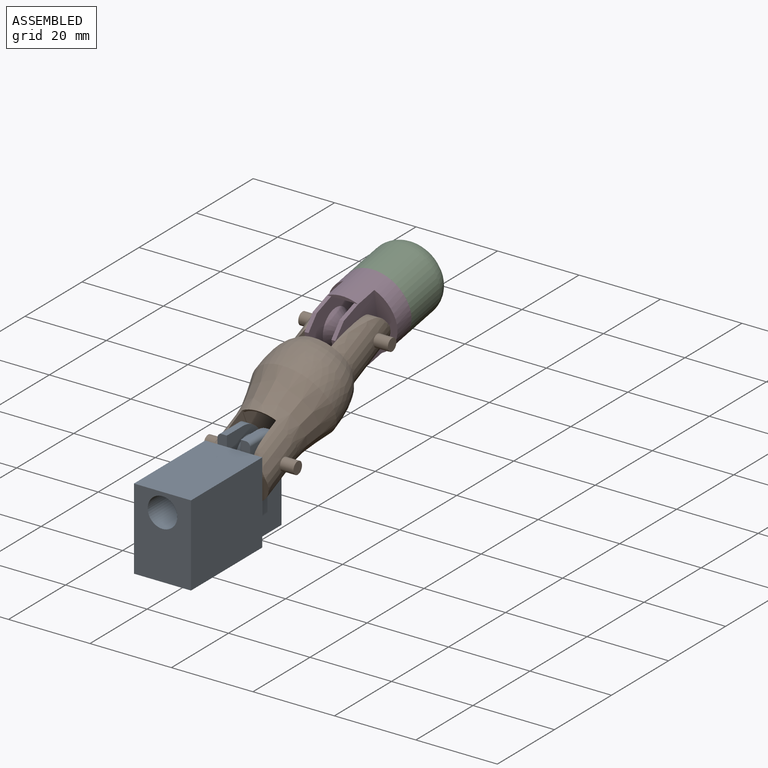
[diagram: assembled view]
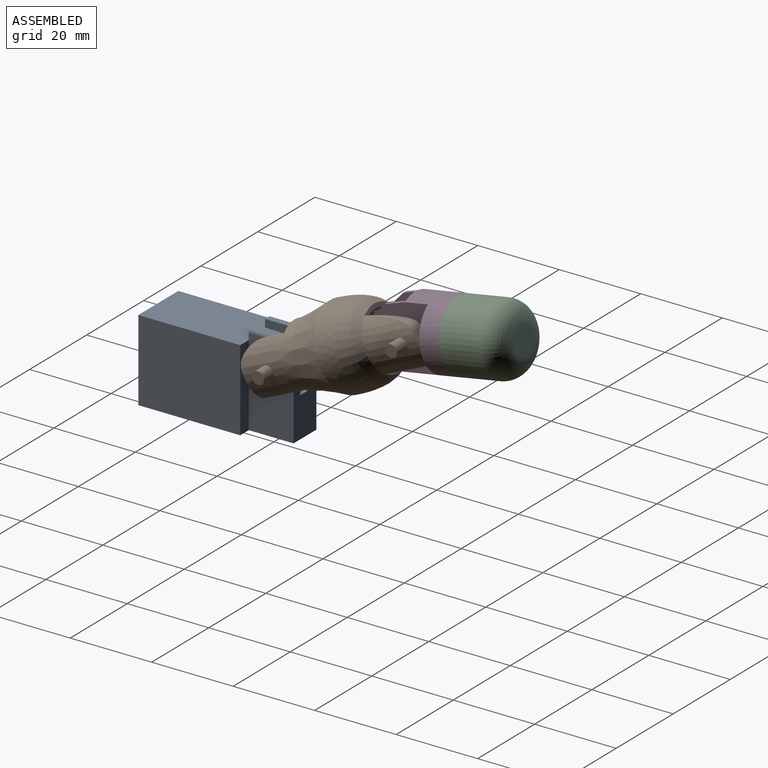
[diagram: assembled view, second angle]
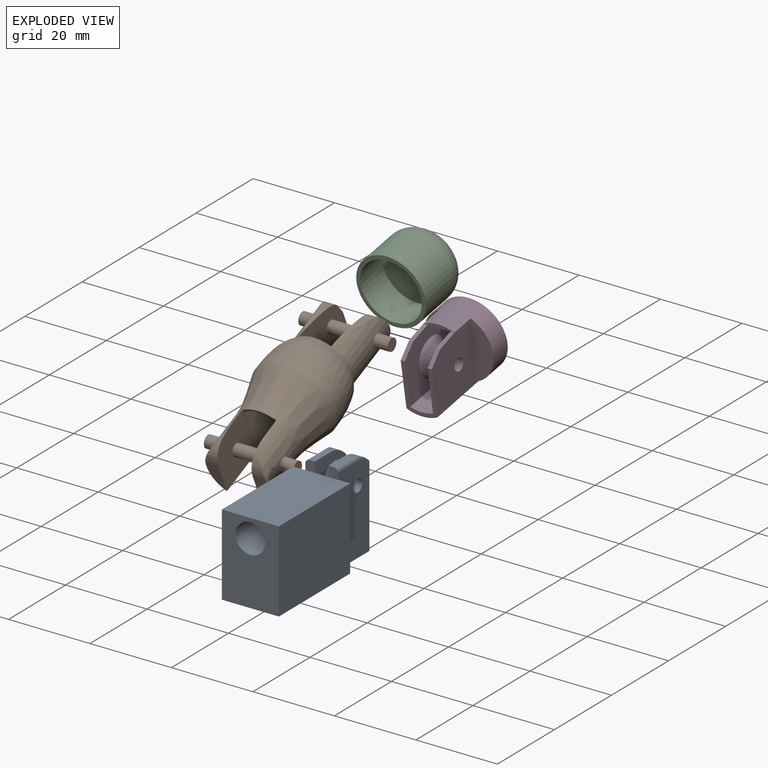
[diagram: exploded view]
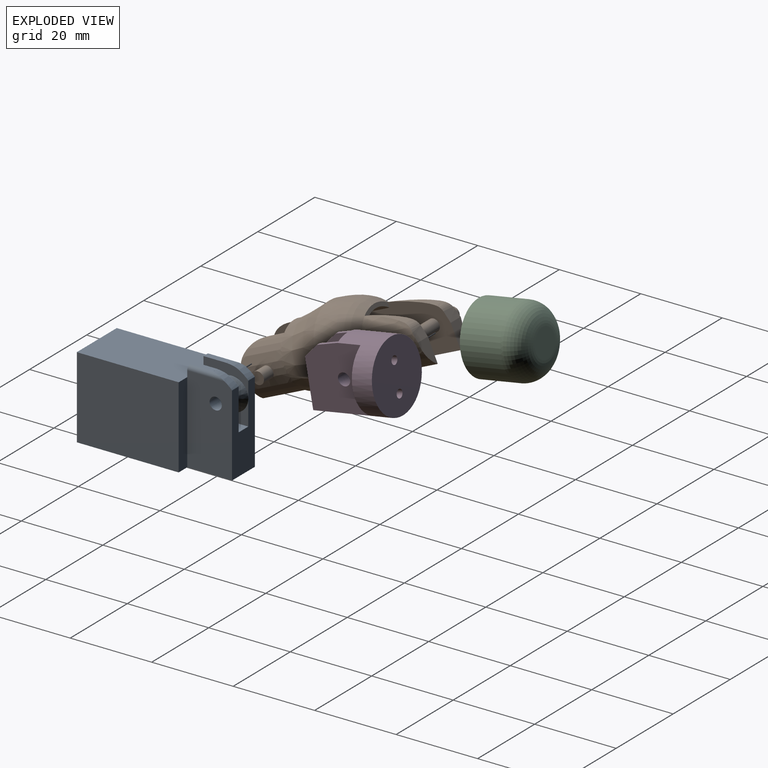
[diagram: exploded view, second angle]
ASSEMBLY  parts=4 mates=3
PART A: 32 faces, bbox 14x36.1x22.5 mm
  f0: plane 3.4x1.36mm, normal (0,1,0), area 3.7mm2, adj f1,f3,f14,f30
  f1: plane 12.7x11.06mm, normal (1,0,0), area 78.1mm2, adj f0,f5,f7,f8,f10,f13,f21,f25
  f2: plane 21.6x11.06mm, normal (-1,0,0), area 228.1mm2, adj f5,f9,f10,f18,f19,f26,f28
  f3: plane 12.7x11.06mm, normal (-1,0,0), area 78.1mm2, adj f0,f6,f7,f10,f11,f13,f22,f23
  f4: plane 21.6x11.06mm, normal (1,0,0), area 228.1mm2, adj f6,f9,f10,f12,f19,f23,f27
  f5: plane 2.5x2.3mm, normal (0,-1,0), area 5.5mm2, adj f1,f2,f8,f14,f28
  f6: plane 2.5x2.3mm, normal (0,-1,0), area 5.5mm2, adj f3,f4,f11,f14,f27
  f7: plane 11x3.4mm, normal (0,0,1), area 37.4mm2, adj f1,f3,f10,f13
  f8: plane 5.74x1.3mm, normal (0,0,1), area 7.5mm2, adj f1,f5,f25,f28
  f9: plane 36x14mm, normal (0,0,-1), area 438mm2, adj f2,f4,f10,f12,f15,f16,f17,f18
  f10: plane 19.97x8mm, normal (0,1,0), area 125.2mm2, adj f1,f2,f3,f4,f7,f9,f23,f26
  f11: plane 5.74x1.3mm, normal (0,0,1), area 7.5mm2, adj f3,f6,f24,f27
  f12: plane 20x3mm, normal (0,1,0), area 60mm2, adj f4,f9,f14,f16
  f13: plane 3.4x2.42mm, normal (0,1,0), area 7.3mm2, adj f1,f3,f7,f30
  f14: plane 25x14mm, normal (0,0,1), area 350mm2, adj f0,f5,f6,f12,f15,f16,f17,f18
  f15: plane 25x20mm, normal (-1,0,0), area 500mm2, adj f9,f14,f17,f18
  f16: plane 25x20mm, normal (1,0,0), area 500mm2, adj f9,f12,f14,f17
  f17: plane 20x14mm, normal (0,-1,0), area 238.6mm2, adj f9,f14,f15,f16,f30
  f18: plane 20x3mm, normal (0,1,0), area 60mm2, adj f2,f9,f14,f15
  f19: cylinder r=1.5mm len=8mm, axis (1,0,0), area 75.4mm2, adj f2,f4
  f20: cylinder r=2.5mm len=5mm, axis (1,0,0), area 6.3mm2, adj f21,f22
  f21: cone r=2.5mm half-angle=45deg, axis (-1,0,0), area 43.3mm2, adj f1,f20
  f22: cone r=2.5mm half-angle=45deg, axis (1,0,0), area 43.3mm2, adj f3,f20
  f23: extruded ~5.26x2.53mm, area 12.6mm2, adj f3,f4,f10,f24,f27
  f24: plane 1.37x0mm, normal (0,1,0), area 0mm2, adj f3,f11,f23,f27
  f25: plane 1.37x0mm, normal (0,1,0), area 0mm2, adj f1,f8,f26,f28
  f26: extruded ~5.26x2.53mm, area 12.6mm2, adj f1,f2,f10,f25,f28
  f27: cylinder r=1mm len=9.13mm, axis (0,1,0), area 11.7mm2, adj f4,f6,f11,f23,f24
  f28: cylinder r=1mm len=9.13mm, axis (0,1,0), area 11.7mm2, adj f2,f5,f8,f25,f26
  f29: plane 6.42x1.93mm, normal (0,-1,0), area 8.8mm2, adj f1,f30
  f30: cylinder r=3.63mm len=26.1mm, axis (0,-1,0), area 587.7mm2, adj f0,f1,f3,f13,f17,f29,f31
  f31: plane 6.42x1.93mm, normal (0,-1,0), area 8.8mm2, adj f3,f30
PART B: 34 faces, bbox 22.4x47x20.2 mm
  f0: plane 8.03x2.38mm, normal (0,1,0), area 8.5mm2, adj f10,f11,f14,f21
  f1: plane 13.85x8.4mm, normal (0,-1,0), area 13.6mm2, adj f3,f4,f9,f11,f14,f22
  f2: extruded ~12.43x11.3mm, area 155.3mm2, adj f3,f9,f17,f20,f30
  f3: plane 12.52x11.39mm, normal (1,0,0), area 126.3mm2, adj f1,f2,f17,f20,f28
  f4: plane 12.52x11.33mm, normal (-1,0,0), area 126.3mm2, adj f1,f5,f18,f19,f28
  f5: extruded ~12.42x11.3mm, area 148.1mm2, adj f4,f9,f18,f19,f31
  f6: plane 5.96x3.52mm, normal (0,1,0), area 14.2mm2, adj f11,f12,f16
  f7: plane 5.96x3.52mm, normal (0,1,0), area 14.2mm2, adj f13,f14,f15
  f8: plane 8.03x2.38mm, normal (0,1,0), area 8.5mm2, adj f10,f11,f14,f22
  f9: bspline ~20x20mm, area 593.9mm2, adj f1,f2,f5,f10,f33
  f10: bspline ~20x20mm, area 659.8mm2, adj f0,f8,f9,f12,f13
  f11: plane 35.73x12.92mm, normal (-1,0,0), area 370.9mm2, adj f0,f1,f6,f8,f12,f16,f21,f22
  f12: extruded ~14x12.69mm, area 175.8mm2, adj f6,f10,f11,f16,f25
  f13: extruded ~14x12.69mm, area 182.9mm2, adj f7,f10,f14,f15,f26
  f14: plane 35.74x12.93mm, normal (1,0,0), area 370.9mm2, adj f0,f1,f7,f8,f13,f15,f21,f22
  f15: extruded ~14x6.76mm, area 27.6mm2, adj f7,f13,f14
  f16: extruded ~13.99x6.76mm, area 27.6mm2, adj f6,f11,f12
  f17: plane 7.56x3.32mm, normal (0,-1,0), area 18.7mm2, adj f2,f3,f20
  f18: plane 7.56x3.32mm, normal (0,-1,0), area 18.7mm2, adj f4,f5,f19
  f19: extruded ~11.24x4.9mm, area 19.8mm2, adj f4,f5,f18
  f20: extruded ~11.3x4.9mm, area 19.9mm2, adj f2,f3,f17
  f21: extruded ~20.5x8mm, area 176.6mm2, adj f0,f11,f14,f33
  f22: extruded ~21.5x8mm, area 185.2mm2, adj f1,f8,f11,f14
  f23: cylinder r=1.5mm len=8mm, axis (-1,0,0), area 75.4mm2, adj f11,f14
  f24: plane 3x3mm, normal (1,0,0), area 7.1mm2, adj f25
  f25: cylinder r=1.5mm len=3.7mm, axis (-1,0,0), area 34.5mm2, adj f12,f24
  f26: cylinder r=1.5mm len=3.7mm, axis (-1,0,0), area 34.5mm2, adj f13,f27
  f27: plane 3x3mm, normal (-1,0,0), area 7.1mm2, adj f26
  f28: cylinder r=1.5mm len=8.4mm, axis (-1,0,0), area 79.2mm2, adj f3,f4
  f29: plane 3x3mm, normal (-1,0,0), area 7.1mm2, adj f30
  f30: cylinder r=1.5mm len=3.94mm, axis (-1,0,0), area 36.4mm2, adj f2,f29
  f31: cylinder r=1.5mm len=3.54mm, axis (-1,0,0), area 32.6mm2, adj f5,f32
  f32: plane 3x3mm, normal (1,0,0), area 7.1mm2, adj f31
  f33: bspline ~9.49x2.49mm, area 13.2mm2, adj f9,f11,f14,f21
PART C: 6 faces, bbox 17x15x17 mm
  f0: cylinder r=8.5mm len=17mm, axis (0,-1,0), area 534.1mm2, adj f2,f3
  f1: plane 7x7mm, normal (0,1,0), area 38.5mm2, adj f3
  f2: plane 17x17mm, normal (0,-1,0), area 50.3mm2, adj f0,f4
  f3: torus R=3.5mm, axis (0,1,0), area 329.8mm2, adj f0,f1
  f4: cylinder r=7.5mm len=15mm, axis (0,-1,0), area 377mm2, adj f2,f5
  f5: plane 15x15mm, normal (0,-1,0), area 176.7mm2, adj f4
PART D: 23 faces, bbox 17x19.5x17 mm
  f0: plane 16x14.56mm, normal (-1,0,0), area 156.4mm2, adj f2,f3,f4,f15,f16,f17,f20
  f1: plane 16x14.56mm, normal (1,0,0), area 156.4mm2, adj f2,f11,f12,f15,f16,f17,f19
  f2: plane 12.49x7.6mm, normal (0,-1,0), area 29.3mm2, adj f0,f1,f4,f5,f6,f10,f12,f16
  f3: plane 5.24x1mm, normal (0,-0.16,0.99), area 5.3mm2, adj f0,f4,f10,f13
  f4: plane 3.5x2.76mm, normal (0,-0.62,0.79), area 4.5mm2, adj f0,f2,f3,f10
  f5: cylinder r=8.5mm len=19.5mm, axis (0,-1,0), area 426.6mm2, adj f2,f6,f7,f8,f9,f10,f13
  f6: plane 15.21x14.5mm, normal (-1,0,0), area 203.3mm2, adj f2,f5,f7,f11,f12,f14
  f7: plane 15.21x4.7mm, normal (0,-1,0), area 51.1mm2, adj f5,f6
  f8: plane 17x17mm, normal (0,1,0), area 220.7mm2, adj f5,f21,f22
  f9: plane 15.21x4.7mm, normal (0,-1,0), area 51.1mm2, adj f5,f10
  f10: plane 15.21x14.5mm, normal (1,0,0), area 203.3mm2, adj f2,f3,f4,f5,f9,f14
  f11: plane 5.24x1mm, normal (0,-0.16,0.99), area 5.3mm2, adj f1,f6,f12,f13
  f12: plane 3.5x2.76mm, normal (0,-0.62,0.79), area 4.5mm2, adj f1,f2,f6,f11
  f13: plane 7.6x0.9mm, normal (0,-1,0), area 4.6mm2, adj f3,f5,f11,f15
  f14: cylinder r=1.5mm len=7.6mm, axis (-1,0,0), area 71.6mm2, adj f6,f10
  f15: plane 7.25x5.6mm, normal (0,0,-1), area 40.6mm2, adj f0,f1,f13,f17
  f16: cylinder r=7.5mm len=16mm, axis (0,-1,0), area 91.8mm2, adj f0,f1,f2,f17
  f17: plane 15.1x5.6mm, normal (0,-1,0), area 77.3mm2, adj f0,f1,f15,f16,f21,f22
  f18: cylinder r=2.1mm len=4.2mm, axis (-1,0,0), area 7.9mm2, adj f19,f20
  f19: cone r=2.1mm half-angle=45deg, axis (-1,0,0), area 74.4mm2, adj f1,f18
  f20: cone r=2.1mm half-angle=45deg, axis (1,0,0), area 74.4mm2, adj f0,f18
  f21: cylinder r=1mm len=3.5mm, axis (0,-1,0), area 22mm2, adj f8,f17
  f22: cylinder r=1mm len=3.5mm, axis (0,-1,0), area 22mm2, adj f8,f17
PLACE A t=(-2.91,25.57,-9.19)mm fixed
PLACE B rot(axis=(1,0,0),24.1deg) t=(-2.91,31.76,-6.16)mm
PLACE C rot(axis=(1,0,0),10.1deg) t=(-2.91,25.71,0.13)mm
PLACE D rot(axis=(1,0,0),10.1deg) t=(-2.91,25.71,0.13)mm
MATE fastened D.f5 <-> C.f0  axis (0,0.98,0.18) through (-2.91,64.67,23.73)mm
MATE revolute D.f14 <-> B.f23  axis (-1,0,0) through (-2.91,54.37,21.66)mm
MATE revolute B.f28 <-> A.f19  axis (-1,0,0) through (-2.91,21.57,6.81)mm
